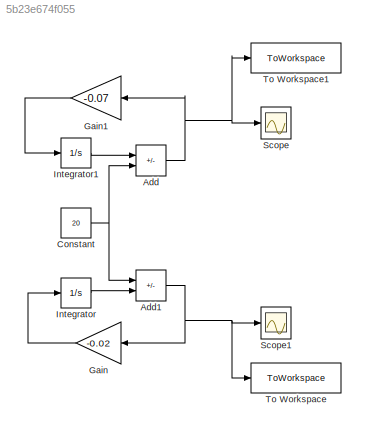
MODEL slx_5b23e674f055
KIND model
CONFIG AbsTol = auto
CONFIG EnableMultiTasking = off
CONFIG FixedStep = auto
CONFIG MaxStep = auto
CONFIG MinStep = auto
CONFIG RelTol = 1e-3
CONFIG SampleTimeConstraint = Unconstrained
CONFIG SolverName = VariableStepAuto
CONFIG StartTime = 0.0
CONFIG StopTime = 27
BLOCK [Sum] Add
  IconShape = rectangular
  Inputs = +-
BLOCK [Sum] Add1
  IconShape = rectangular
  Inputs = -+
BLOCK [Constant] Constant
  Value = 20
BLOCK [Gain] Gain
  Gain = -0.02
BLOCK [Gain] Gain1
  Gain = -0.07
BLOCK [Integrator] Integrator
  InitialCondition = 130
BLOCK [Integrator] Integrator1
  InitialCondition = 150
BLOCK [Scope] Scope
  ActiveDisplayYMaximum = 1
  ActiveDisplayYMinimum = -1
  Floating = off
  GraphicalSettings = {"Style":{"BackgroundColor":[0.12941176470588237,0.12941176470588237,0.12941176470588237],"AxesColor":[0.07058823529411765,0.07058823529411765,0.07058823529411765],"LabelsColor":[0.8509803921568627,0.8509803921568627,0.8509803921568627],"PreserveColors":false,"Visible":[true],"LineStyle":["-"],"LineWidth":[1.5],"BarWidth":[0.9],"LineColor":["auto"],"LineFaceAlpha":[1],"LineEdgeAlpha":[1],"Marker":...<+1891ch>
  MultipleDisplayCache = [{"MaxYLimMag":1,"MaxYLimReal":1,"MinYLimMag":0,"MinYLimReal":-1,"PlotAsMagnitudePhase":false,"ShowGrid":true,"ShowLegend":false,"Title":"%<SignalLabel>","YLabel":""}]
  NumInputPorts = 1
  ScopeFrameLocation = window
  WasSavedAsWebScope = on
  WindowPosition = [680.000000,330.000000,560.000000,420.000000,]
BLOCK [Scope] Scope1
  DataLoggingVariableName = ScopeData1
  Floating = off
  GraphicalSettings = {"GraphicalSettings":{"LegacySettings":true,"Style":{"Style":{"PlotType":"Auto"}}}}
  NumInputPorts = 1
  WasSavedAsWebScope = on
BLOCK [ToWorkspace] To Workspace
  FixptAsFi = on
  MaxDataPoints = inf
  SampleTime = -1
  SaveFormat = Timeseries
  VariableName = simout
BLOCK [ToWorkspace] To Workspace1
  FixptAsFi = on
  MaxDataPoints = inf
  SampleTime = -1
  SaveFormat = Timeseries
  VariableName = simout1
NET Add1:1 -> Gain:1, Scope1:1, To Workspace:1
NET Add:1 -> Gain1:1, Scope:1, To Workspace1:1
NET Constant:1 -> Add1:1, Add:2
LINE Gain1:1 -> Integrator1:1
LINE Gain:1 -> Integrator:1
LINE Integrator1:1 -> Add:1
LINE Integrator:1 -> Add1:2
note: NET lines group one-source signal fan-out (src -> all destinations, sorted); 1:1 wires keep LINE
